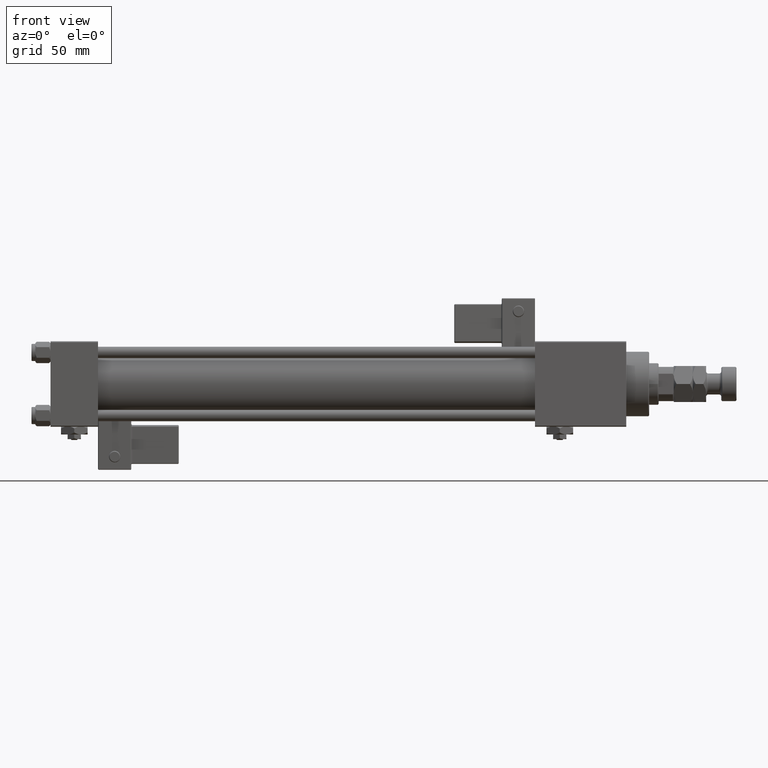
[diagram: clean part render]
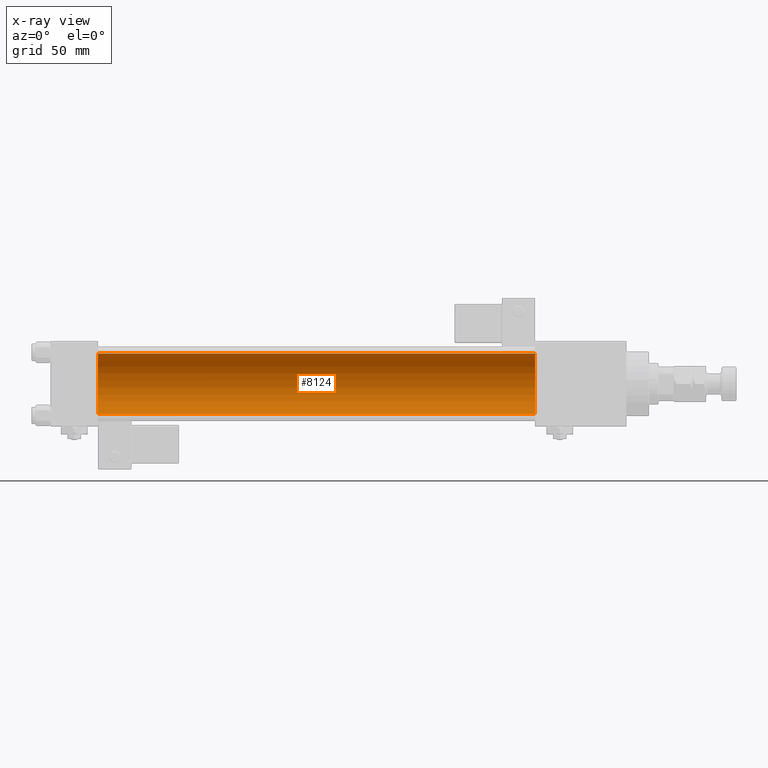
[diagram: x-ray — body ghosted, one internal face saturated and labeled with its STEP entity id]
A machine part, front view, then the same camera in x-ray: the body is ghosted and one INTERNAL B-rep face — a face not visible from any outside direction — is saturated and labeled: STEP entity #8124.
In plain terms, the highlighted cylindrical surface (edge-blend (fillet) strip) has radius 16 mm, axis along (-1, -0, -0).
Its self-contained STEP definition (entity closure, byte-faithful):
#1156 = DIRECTION ( 'NONE',  ( -1.000000000000000000, -0.000000000000000000, -0.000000000000000000 ) ) ;
#1204 = DIRECTION ( 'NONE',  ( 1.000000000000000000, 0.000000000000000000, 0.000000000000000000 ) ) ;
#1366 = EDGE_CURVE ( 'NONE', #41046, #8870, #22214, .T. ) ;
#4409 = ORIENTED_EDGE ( 'NONE', *, *, #55508, .T. ) ;
#5095 = CARTESIAN_POINT ( 'NONE',  ( 255.0000000000000000, -6.426503353294456087E-16, -16.00000000000000000 ) ) ;
#8124 = ADVANCED_FACE ( 'NONE', ( #48931 ), #21461, .F. ) ;
#8190 = ORIENTED_EDGE ( 'NONE', *, *, #1366, .F. ) ;
#8870 = VERTEX_POINT ( 'NONE', #27753 ) ;
#14835 = CARTESIAN_POINT ( 'NONE',  ( 255.0000000000000000, -2.602085213965210642E-15, 16.00000000000000000 ) ) ;
#15255 = CARTESIAN_POINT ( 'NONE',  ( 25.00000000000000000, -2.602085213965210642E-15, 16.00000000000000000 ) ) ;
#15383 = EDGE_LOOP ( 'NONE', ( #8190, #40769, #4409, #19989 ) ) ;
#15476 = CIRCLE ( 'NONE', #29086, 16.00000000000000000 ) ;
#17103 = DIRECTION ( 'NONE',  ( -1.000000000000000000, -0.000000000000000000, -0.000000000000000000 ) ) ;
#19989 = ORIENTED_EDGE ( 'NONE', *, *, #21669, .F. ) ;
#21461 = CYLINDRICAL_SURFACE ( 'NONE', #27003, 16.00000000000000000 ) ;
#21669 = EDGE_CURVE ( 'NONE', #8870, #55363, #22906, .T. ) ;
#22214 = LINE ( 'NONE', #5095, #27958 ) ;
#22906 = CIRCLE ( 'NONE', #52856, 16.00000000000000000 ) ;
#27003 = AXIS2_PLACEMENT_3D ( 'NONE', #29698, #44669, #38796 ) ;
#27701 = CARTESIAN_POINT ( 'NONE',  ( 255.0000000000000000, -2.602085213965210642E-15, 0.000000000000000000 ) ) ;
#27753 = CARTESIAN_POINT ( 'NONE',  ( 25.00000000000000000, -6.426503353294456087E-16, -16.00000000000000000 ) ) ;
#27958 = VECTOR ( 'NONE', #17103, 1000.000000000000000 ) ;
#29086 = AXIS2_PLACEMENT_3D ( 'NONE', #27701, #1204, #36221 ) ;
#29698 = CARTESIAN_POINT ( 'NONE',  ( 255.0000000000000000, -2.602085213965210642E-15, 0.000000000000000000 ) ) ;
#32461 = DIRECTION ( 'NONE',  ( 1.000000000000000000, 0.000000000000000000, 0.000000000000000000 ) ) ;
#36221 = DIRECTION ( 'NONE',  ( 0.000000000000000000, 0.000000000000000000, -1.000000000000000000 ) ) ;
#36797 = CARTESIAN_POINT ( 'NONE',  ( 255.0000000000000000, -2.602085213965210642E-15, 16.00000000000000000 ) ) ;
#37872 = CARTESIAN_POINT ( 'NONE',  ( 25.00000000000000000, -2.602085213965210642E-15, 0.000000000000000000 ) ) ;
#38796 = DIRECTION ( 'NONE',  ( 0.000000000000000000, 0.000000000000000000, 1.000000000000000000 ) ) ;
#40769 = ORIENTED_EDGE ( 'NONE', *, *, #56062, .T. ) ;
#41046 = VERTEX_POINT ( 'NONE', #45566 ) ;
#43575 = VECTOR ( 'NONE', #1156, 1000.000000000000000 ) ;
#44669 = DIRECTION ( 'NONE',  ( -1.000000000000000000, -0.000000000000000000, -0.000000000000000000 ) ) ;
#45566 = CARTESIAN_POINT ( 'NONE',  ( 255.0000000000000000, -6.426503353294456087E-16, -16.00000000000000000 ) ) ;
#48931 = FACE_OUTER_BOUND ( 'NONE', #15383, .T. ) ;
#52856 = AXIS2_PLACEMENT_3D ( 'NONE', #37872, #32461, #54359 ) ;
#52973 = LINE ( 'NONE', #14835, #43575 ) ;
#54359 = DIRECTION ( 'NONE',  ( 0.000000000000000000, 0.000000000000000000, -1.000000000000000000 ) ) ;
#54415 = VERTEX_POINT ( 'NONE', #36797 ) ;
#55363 = VERTEX_POINT ( 'NONE', #15255 ) ;
#55508 = EDGE_CURVE ( 'NONE', #54415, #55363, #52973, .T. ) ;
#56062 = EDGE_CURVE ( 'NONE', #41046, #54415, #15476, .T. ) ;